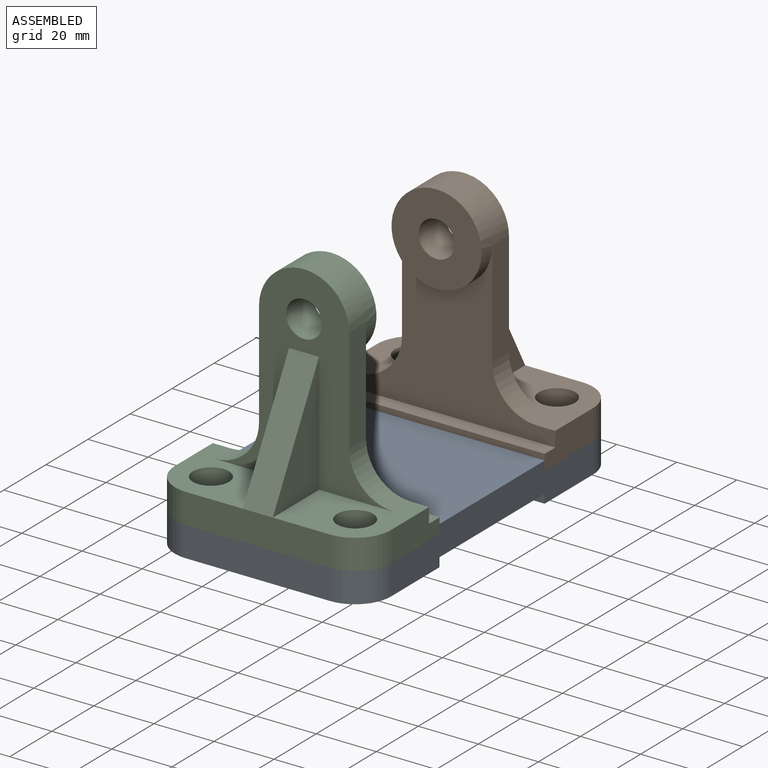
[diagram: assembled view]
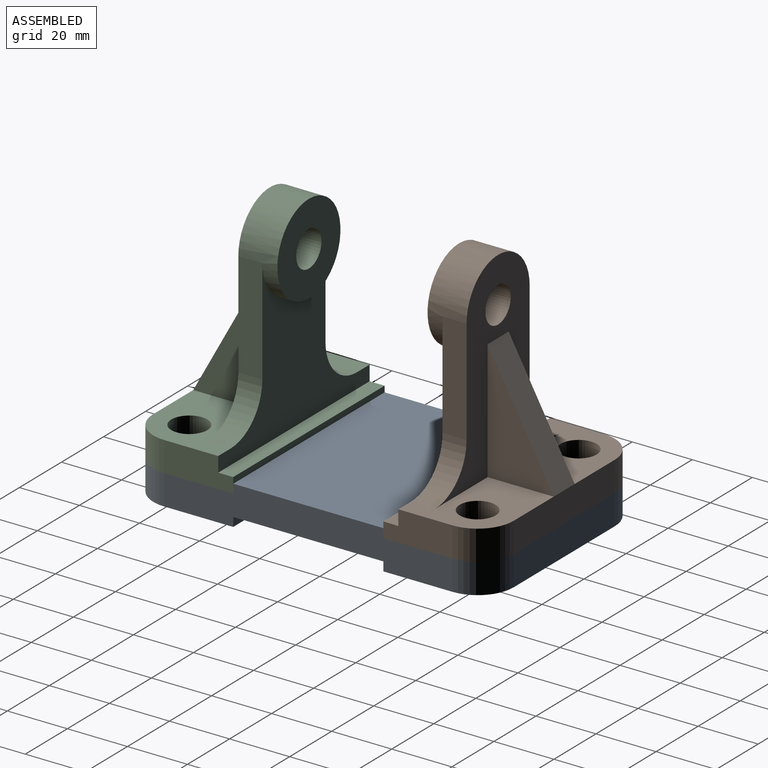
[diagram: assembled view, second angle]
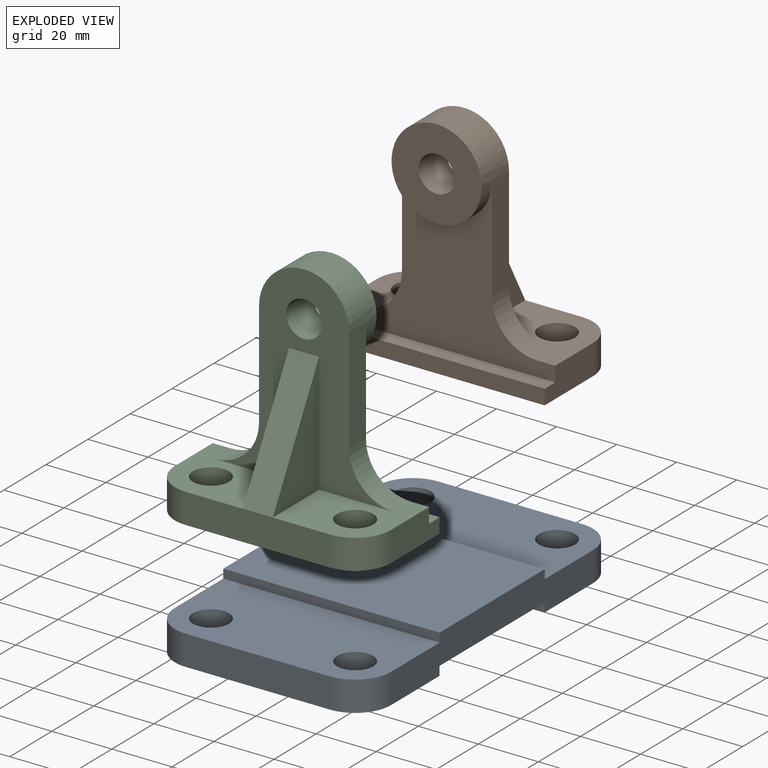
[diagram: exploded view]
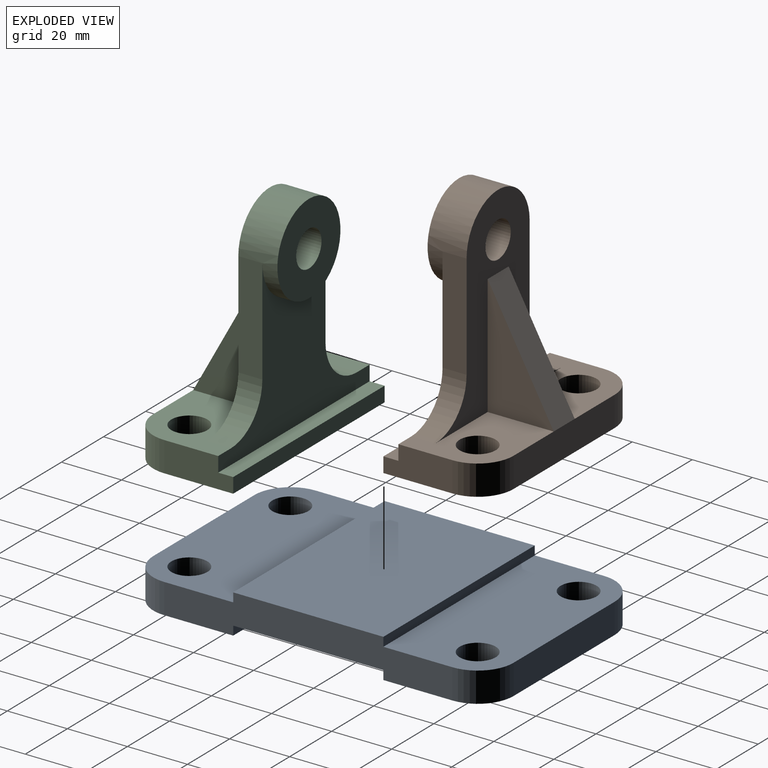
[diagram: exploded view, second angle]
ASSEMBLY  parts=3 mates=2
PART A: 22 faces, bbox 72x120x13 mm
  f0: plane 72x35mm, normal (0,0,-1), area 2232mm2, adj f1,f3,f4,f5,f9,f12,f13,f19
  f1: plane 96x13mm, normal (-1,0,0), area 960mm2, adj f0,f2,f10,f11,f13,f15,f16,f17
  f2: plane 72x35mm, normal (0,0,1), area 2232mm2, adj f1,f4,f6,f7,f8,f14,f15,f18
  f3: plane 48x10mm, normal (0,-1,0), area 480mm2, adj f0,f10,f12,f13
  f4: plane 96x13mm, normal (1,0,0), area 960mm2, adj f0,f2,f10,f11,f12,f14,f16,f17
  f5: cylinder r=6mm len=12mm, axis (0,0,-1), area 377mm2, adj f0,f10
  f6: cylinder r=6mm len=12mm, axis (0,0,-1), area 377mm2, adj f2,f11
  f7: cylinder r=6mm len=12mm, axis (0,0,-1), area 377mm2, adj f2,f11
  f8: plane 48x10mm, normal (0,1,0), area 480mm2, adj f2,f11,f14,f15
  f9: cylinder r=6mm len=12mm, axis (0,0,-1), area 377mm2, adj f0,f10
  f10: plane 72x35mm, normal (0,0,1), area 2232mm2, adj f1,f3,f4,f5,f9,f12,f13,f17
  f11: plane 72x35mm, normal (0,0,-1), area 2232mm2, adj f1,f4,f6,f7,f8,f14,f15,f20
  f12: cylinder r=12mm len=12mm, axis (0,0,-1), area 188.5mm2, adj f0,f3,f4,f10
  f13: cylinder r=12mm len=12mm, axis (0,0,1), area 188.5mm2, adj f0,f1,f3,f10
  f14: cylinder r=12mm len=12mm, axis (0,0,1), area 188.5mm2, adj f2,f4,f8,f11
  f15: cylinder r=12mm len=12mm, axis (0,0,-1), area 188.5mm2, adj f1,f2,f8,f11
  f16: plane 72x50mm, normal (0,0,1), area 3600mm2, adj f1,f4,f17,f18
  f17: plane 72x3mm, normal (0,-1,0), area 216mm2, adj f1,f4,f10,f16
  f18: plane 72x3mm, normal (0,1,0), area 216mm2, adj f1,f2,f4,f16
  f19: plane 72x3mm, normal (0,1,0), area 216mm2, adj f0,f1,f4,f21
  f20: plane 72x3mm, normal (0,-1,0), area 216mm2, adj f1,f4,f11,f21
  f21: plane 72x50mm, normal (0,0,-1), area 3600mm2, adj f1,f4,f19,f20
PART B: 24 faces, bbox 72x35x75 mm
  f0: plane 72x55mm, normal (0,1,0), area 1603.1mm2, adj f1,f2,f5,f6,f9,f17,f18,f19
  f1: plane 31x30mm, normal (0,0,1), area 586mm2, adj f0,f4,f5,f10,f12,f14,f16,f20
  f2: plane 31x30mm, normal (0,0,1), area 586mm2, adj f0,f3,f4,f6,f13,f15,f16,f19
  f3: plane 40x22mm, normal (1,0,0), area 440mm2, adj f2,f11,f16
  f4: plane 48x10mm, normal (0,-1,0), area 480mm2, adj f1,f2,f7,f11,f12,f13
  f5: plane 23x10mm, normal (-1,0,0), area 205mm2, adj f0,f1,f7,f8,f9,f12
  f6: plane 23x10mm, normal (1,0,0), area 205mm2, adj f0,f2,f7,f8,f9,f13
  f7: plane 72x35mm, normal (0,0,-1), area 2232mm2, adj f4,f5,f6,f8,f12,f13,f14,f15
  f8: plane 72x5mm, normal (0,1,0), area 360mm2, adj f5,f6,f7,f9
  f9: plane 72x5mm, normal (0,0,1), area 360mm2, adj f0,f5,f6,f8
  f10: plane 40x22mm, normal (-1,0,0), area 440mm2, adj f1,f11,f16
  f11: plane 40x22mm, normal (0,-0.88,0.48), area 456.5mm2, adj f3,f4,f10,f16
  f12: cylinder r=12mm len=12mm, axis (0,0,-1), area 188.5mm2, adj f1,f4,f5,f7
  f13: cylinder r=12mm len=12mm, axis (0,0,1), area 188.5mm2, adj f2,f4,f6,f7
  f14: cylinder r=6mm len=12mm, axis (0,0,1), area 377mm2, adj f1,f7
  f15: cylinder r=6mm len=12mm, axis (0,0,1), area 377mm2, adj f2,f7
  f16: plane 65x60mm, normal (0,-1,0), area 1436.9mm2, adj f1,f2,f3,f10,f11,f17,f18,f19
  f17: plane 35x8mm, normal (1,0,0), area 280mm2, adj f0,f16,f19,f21
  f18: plane 35x8mm, normal (-1,0,0), area 280mm2, adj f0,f16,f20,f21
  f19: cylinder r=15mm len=15mm, axis (0,1,0), area 188.5mm2, adj f0,f2,f16,f17
  f20: cylinder r=15mm len=15mm, axis (0,-1,0), area 188.5mm2, adj f0,f1,f16,f18
  f21: cylinder r=15mm len=30mm, axis (0,-1,0), area 848.2mm2, adj f0,f16,f17,f18,f22
  f22: plane 30x30mm, normal (0,1,0), area 593.8mm2, adj f21,f23
  f23: cylinder r=6mm len=13mm, axis (0,-1,0), area 490.1mm2, adj f16,f22
PART C: same geometry as B
PLACE A t=(42.06,62.1,-34.02)mm
PLACE B rot(axis=(0,0,1),180deg) t=(38.18,113.77,-24.02)mm
PLACE C t=(28.11,27.47,-24.02)mm
MATE fastened B.f13 <-> A.f15  axis (0,0,-1) through (9.15,118.62,-24.02)mm
MATE fastened A.f9 <-> C.f12  axis (0,0,1) through (9.14,22.62,-24.02)mm
